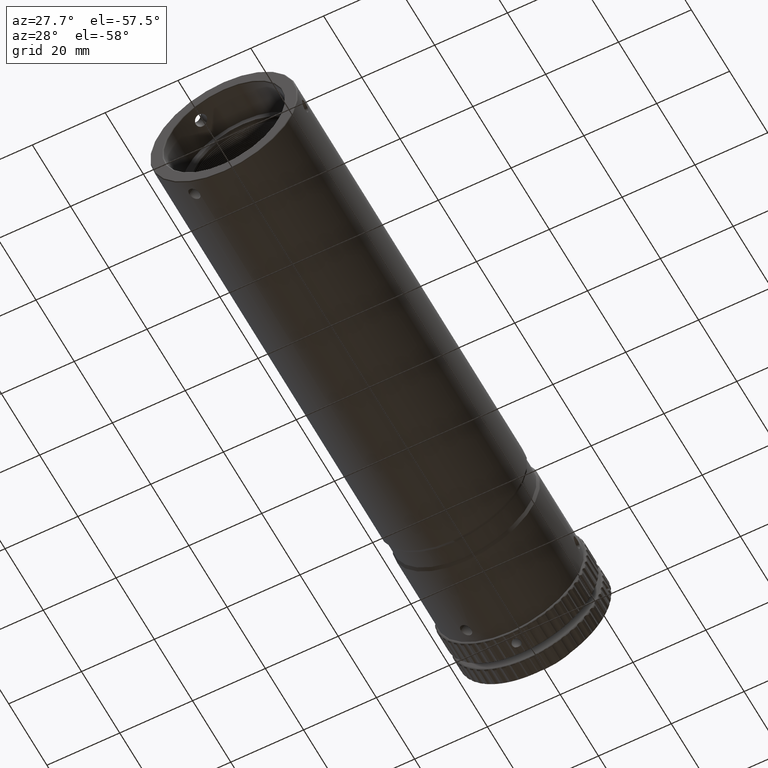
[diagram: clean part render]
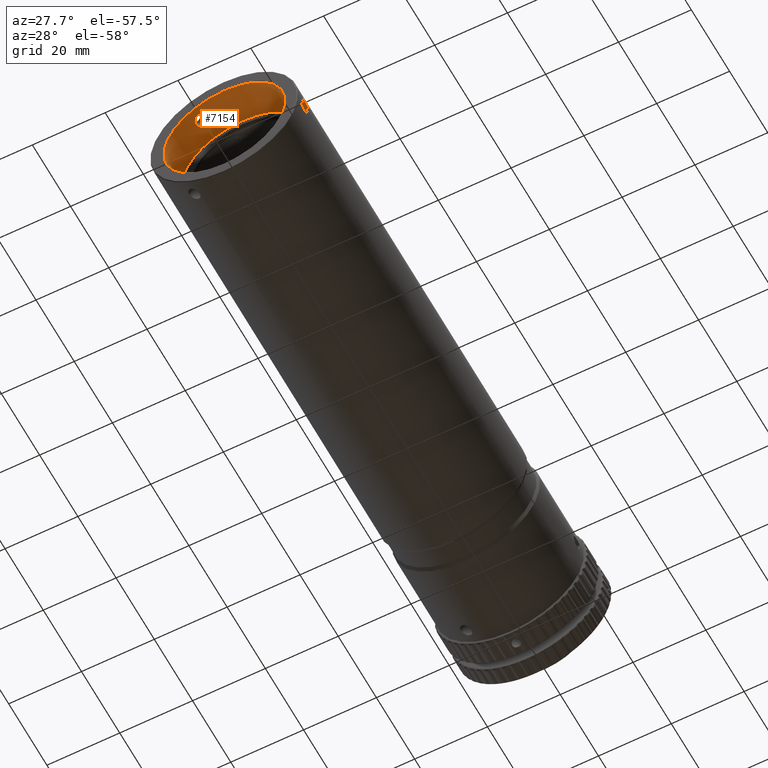
[diagram: same view with one face highlighted and labeled with its STEP entity id]
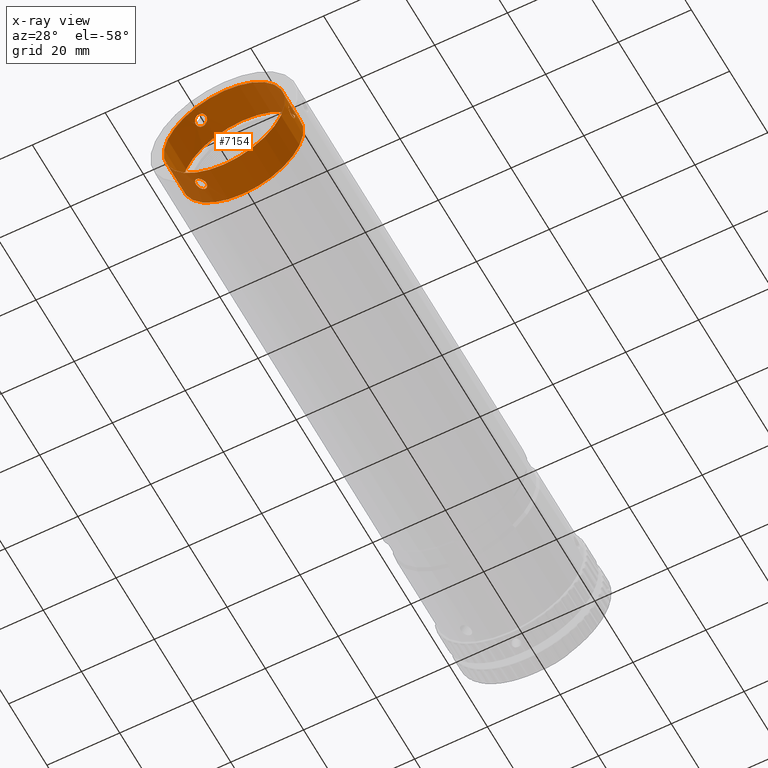
[diagram: x-ray of the same camera — body ghosted, the highlighted face saturated]
A machine part, auxiliary view. The second image highlights one B-rep face of the part: STEP entity #7154.
The next image is the same camera in x-ray: the body ghosted, the highlighted face saturated — about 0% of this face is hidden behind the body in this view.
In plain terms, the highlighted cylindrical surface (bore or boss wall) has radius 16.65 mm, axis along (-0, -1, -0).
Its self-contained STEP definition (entity closure, byte-faithful):
#75 = CARTESIAN_POINT ( 'NONE',  ( -66.75459263948715700, -25.88126383602334400, 1.649960323520047300 ) ) ;
#125 = CARTESIAN_POINT ( 'NONE',  ( -66.67262789791868700, -24.12284469964755100, -0.1074326723769098200 ) ) ;
#241 = DIRECTION ( 'NONE',  ( 0.0000000000000000000, 0.0000000000000000000, -1.000000000000000000 ) ) ;
#395 = CARTESIAN_POINT ( 'NONE',  ( -92.85704117589803300, -26.59958695141354600, -13.64995483160414500 ) ) ;
#446 = CARTESIAN_POINT ( 'NONE',  ( -90.76147769274268700, -27.08533141833559900, -14.89611279452171600 ) ) ;
#485 = CARTESIAN_POINT ( 'NONE',  ( -66.67263231235790500, -27.42300638599903800, 0.1067774955328074100 ) ) ;
#488 = CARTESIAN_POINT ( 'NONE',  ( -90.47879859613387100, -24.75960419416959700, -15.03446290520388700 ) ) ;
#521 = CYLINDRICAL_SURFACE ( 'NONE', #1212, 16.64999999999972900 ) ;
#528 = CARTESIAN_POINT ( 'NONE',  ( -92.27247448545041700, -24.28955594591042200, -14.04040376283230400 ) ) ;
#626 = CARTESIAN_POINT ( 'NONE',  ( -90.17771696326720100, -25.88202645505071300, 15.17334485228147800 ) ) ;
#663 = CARTESIAN_POINT ( 'NONE',  ( -90.54831841667092400, -26.86374050248877100, 15.00059528000334200 ) ) ;
#700 = VERTEX_POINT ( 'NONE', #8418 ) ;
#710 = CARTESIAN_POINT ( 'NONE',  ( -92.70119582803558000, -26.86318963047831700, 13.75758417406720800 ) ) ;
#771 = CARTESIAN_POINT ( 'NONE',  ( -92.50467813197917600, -24.46149750697041700, 13.88958943048005200 ) ) ;
#816 = CARTESIAN_POINT ( 'NONE',  ( -90.76244719381560300, -24.45971112726386900, 14.89563052912040700 ) ) ;
#829 = AXIS2_PLACEMENT_3D ( 'NONE', #7284, #12806, #873 ) ;
#873 = DIRECTION ( 'NONE',  ( 0.0000000000000000000, 0.0000000000000000000, -1.000000000000000000 ) ) ;
#1031 = VERTEX_POINT ( 'NONE', #11227 ) ;
#1145 = CARTESIAN_POINT ( 'NONE',  ( -66.75015348581297300, -25.34092814471971500, 1.606878748266351100 ) ) ;
#1185 = CARTESIAN_POINT ( 'NONE',  ( -66.67775052434888000, -24.17522605979797100, -0.4258526878777749200 ) ) ;
#1212 = AXIS2_PLACEMENT_3D ( 'NONE', #12888, #11835, #241 ) ;
#1349 = CIRCLE ( 'NONE', #829, 16.64999999999963600 ) ;
#1358 = CARTESIAN_POINT ( 'NONE',  ( -93.03560079575565600, -25.88202645505072400, -13.52334485228160000 ) ) ;
#1361 = VERTEX_POINT ( 'NONE', #3121 ) ;
#1465 = CARTESIAN_POINT ( 'NONE',  ( -92.70069455096802400, -26.86374050248878100, -13.75792033946958500 ) ) ;
#1496 = CARTESIAN_POINT ( 'NONE',  ( -66.75352008772910000, -25.98926885422584800, -1.639290063819079500 ) ) ;
#1498 = CARTESIAN_POINT ( 'NONE',  ( -90.54777665035881300, -26.86318963047833100, -15.00086131597701400 ) ) ;
#1538 = CARTESIAN_POINT ( 'NONE',  ( -66.67779900076247700, -27.37016678568784300, 0.4278266125561721600 ) ) ;
#1540 = CARTESIAN_POINT ( 'NONE',  ( -90.76035540387367500, -24.46149750697043500, -14.89667462710533600 ) ) ;
#1587 = CARTESIAN_POINT ( 'NONE',  ( -92.50272802162921000, -24.45971112726387300, -13.89087892471669200 ) ) ;
#1669 = EDGE_CURVE ( 'NONE', #3020, #3020, #1349, .T. ) ;
#1721 = CARTESIAN_POINT ( 'NONE',  ( -90.91863394221572000, -27.21480437953679800, 14.81765199850995700 ) ) ;
#1770 = CARTESIAN_POINT ( 'NONE',  ( -92.85620087089742500, -26.60130690940707200, 13.65054126060565700 ) ) ;
#1810 = CARTESIAN_POINT ( 'NONE',  ( -92.27467414795688700, -24.29084885715613100, 14.03900028695845000 ) ) ;
#1856 = CARTESIAN_POINT ( 'NONE',  ( -90.48037838563874400, -24.75732889106927800, 15.03371386940919100 ) ) ;
#1883 = ORIENTED_EDGE ( 'NONE', *, *, #1669, .F. ) ;
#2174 = CARTESIAN_POINT ( 'NONE',  ( -66.72433106870350600, -24.75960419416957200, 1.319814683785604000 ) ) ;
#2229 = CARTESIAN_POINT ( 'NONE',  ( -66.68837359420317100, -24.28955594591042900, -0.7305837737040182800 ) ) ;
#2497 = CARTESIAN_POINT ( 'NONE',  ( -92.35710325897071000, -27.21480437953678000, -13.98715135126045100 ) ) ;
#2543 = CARTESIAN_POINT ( 'NONE',  ( -66.74635454017793300, -26.30505791833880000, -1.565583909435753500 ) ) ;
#2546 = CARTESIAN_POINT ( 'NONE',  ( -90.37757224657508500, -26.60130690940708900, -15.08157816407927100 ) ) ;
#2589 = AXIS2_PLACEMENT_3D ( 'NONE', #3246, #7250, #4130 ) ;
#2593 = CARTESIAN_POINT ( 'NONE',  ( -66.68837277086970500, -27.25634840566656800, 0.7305582812705180300 ) ) ;
#2597 = CARTESIAN_POINT ( 'NONE',  ( -91.00475099319628200, -24.29084885715612800, -14.77219076220960800 ) ) ;
#2638 = CARTESIAN_POINT ( 'NONE',  ( -92.76334610624711300, -24.75732889106927500, -13.71564184136470000 ) ) ;
#2777 = CARTESIAN_POINT ( 'NONE',  ( -91.46034667254065200, -27.42282993664998300, 14.52744224979590400 ) ) ;
#2818 = CARTESIAN_POINT ( 'NONE',  ( -92.96662177228887500, -26.30503804086366800, 13.57268617147319600 ) ) ;
#2879 = CARTESIAN_POINT ( 'NONE',  ( -92.01631737853284700, -24.17598937840662600, 14.20047774373003900 ) ) ;
#2935 = CARTESIAN_POINT ( 'NONE',  ( -90.21799836891007400, -25.33805193462267600, 15.15530826299030000 ) ) ;
#3020 = VERTEX_POINT ( 'NONE', #10422 ) ;
#3048 = ORIENTED_EDGE ( 'NONE', *, *, #11201, .F. ) ;
#3121 = CARTESIAN_POINT ( 'NONE',  ( -83.32263811662116400, -29.41294781569395800, -16.64999999999981700 ) ) ;
#3139 = EDGE_CURVE ( 'NONE', #1361, #1361, #12181, .T. ) ;
#3246 = CARTESIAN_POINT ( 'NONE',  ( -83.32263811662116400, -29.41294781569395800, 0.0000000000000000000 ) ) ;
#3276 = CARTESIAN_POINT ( 'NONE',  ( -66.70288081401061200, -24.46149750697042800, 1.007085196625160800 ) ) ;
#3305 = B_SPLINE_CURVE_WITH_KNOTS ( 'NONE', 3,
 ( #10147, #626, #11210, #4895, #12242, #5957, #13315, #6998, #663, #8051, #1721, #9109, #2777, #10197, #3855, #11247, #4944, #12296, #6005, #13356, #7052, #710, #8090, #1770, #9156, #2818, #10244, #3909, #11286, #4982, #12350, #6050, #13394, #7098, #771, #8134, #1810, #9207, #2879, #10288, #3952, #11338, #5030, #12389, #6101, #13450, #7138, #816, #8189, #1856, #9251, #2935, #10327, #3992 ),
 .UNSPECIFIED., .T., .F.,
 ( 4, 2, 2, 2, 2, 2, 2, 2, 2, 2, 2, 2, 2, 2, 2, 2, 2, 2, 2, 2, 2, 2, 2, 2, 2, 2, 4 ),
 ( 0.0000000000000000000, 0.0003225757521745182200, 0.0006451515043490364400, 0.0009677272565235548300, 0.001290303008698072900, 0.001935454513047091900, 0.002580606017396111100, 0.002903181769570618900, 0.003225757521745126800, 0.003548333273919634700, 0.003870909026094142500, 0.004193484778268650800, 0.004516060530443158700, 0.004838636282617666600, 0.005161212034792173600, 0.005806363539141201500, 0.006451515043490228500, 0.006774090795664728500, 0.007096666547839228600, 0.007419242300013728600, 0.007741818052188227800, 0.008064393804362727000, 0.008386969556537227100, 0.008709545308711727100, 0.009032121060886227200, 0.009677272565235225600, 0.01032242406958422400 ),
 .UNSPECIFIED. ) ;
#3313 = CARTESIAN_POINT ( 'NONE',  ( -66.70273913441862100, -24.45971112726387300, -1.004751604403841100 ) ) ;
#3387 = FACE_OUTER_BOUND ( 'NONE', #4560, .T. ) ;
#3600 = CARTESIAN_POINT ( 'NONE',  ( -91.83491787899603800, -27.42282993664997900, -14.31118346291821600 ) ) ;
#3639 = CARTESIAN_POINT ( 'NONE',  ( -66.73422894230343200, -26.59958695141354600, -1.432057843451908500 ) ) ;
#3643 = CARTESIAN_POINT ( 'NONE',  ( -90.25493731087678400, -26.30503804086368200, -15.13827792522678100 ) ) ;
#3679 = CARTESIAN_POINT ( 'NONE',  ( -66.70280623086615900, -27.08533141833558500, 1.005832349662410900 ) ) ;
#3681 = CARTESIAN_POINT ( 'NONE',  ( -91.27377295761098700, -24.17598937840663400, -14.62918596503452300 ) ) ;
#3729 = CARTESIAN_POINT ( 'NONE',  ( -92.99983994841045400, -25.33805193462267300, -13.54921127822289700 ) ) ;
#3855 = CARTESIAN_POINT ( 'NONE',  ( -91.83430542976455500, -27.41228261748856100, 14.31031880684696000 ) ) ;
#3909 = CARTESIAN_POINT ( 'NONE',  ( -93.02672942183687600, -25.99066703385440000, 13.52972887091810300 ) ) ;
#3952 = CARTESIAN_POINT ( 'NONE',  ( -91.74339548434990400, -24.12305242980756500, 14.36402546001061100 ) ) ;
#3992 = CARTESIAN_POINT ( 'NONE',  ( -90.17771696326721600, -25.77294781569454300, 15.17334485228148300 ) ) ;
#4130 = DIRECTION ( 'NONE',  ( 0.0000000000000000000, 0.0000000000000000000, -1.000000000000000000 ) ) ;
#4242 = EDGE_CURVE ( 'NONE', #700, #700, #3305, .T. ) ;
#4327 = CARTESIAN_POINT ( 'NONE',  ( -66.68848920871025100, -24.29084885715612800, 0.7331904752510417500 ) ) ;
#4374 = CARTESIAN_POINT ( 'NONE',  ( -66.72418985797757800, -24.75732889106927100, -1.318072028044604800 ) ) ;
#4507 = VERTEX_POINT ( 'NONE', #12220 ) ;
#4551 = EDGE_LOOP ( 'NONE', ( #3048 ) ) ;
#4560 = EDGE_LOOP ( 'NONE', ( #1883 ) ) ;
#4660 = CARTESIAN_POINT ( 'NONE',  ( -91.45990408303313800, -27.41228261748856100, -14.52647952516730400 ) ) ;
#4705 = CARTESIAN_POINT ( 'NONE',  ( -66.71890138222443100, -26.86374050248877800, -1.242674940533872800 ) ) ;
#4707 = CARTESIAN_POINT ( 'NONE',  ( -90.18768137254409100, -25.99066703385441100, -15.16885402641958300 ) ) ;
#4757 = CARTESIAN_POINT ( 'NONE',  ( -66.71894187146897100, -26.86318963047833100, 1.243277141909691700 ) ) ;
#4761 = CARTESIAN_POINT ( 'NONE',  ( -91.55187038173234300, -24.12305242980756900, -14.47460252956342000 ) ) ;
#4804 = CARTESIAN_POINT ( 'NONE',  ( -93.03560079575562700, -25.77294781569453600, -13.52334485228160000 ) ) ;
#4895 = CARTESIAN_POINT ( 'NONE',  ( -90.22590940219345200, -26.20023550979534800, 15.15149463671772500 ) ) ;
#4944 = CARTESIAN_POINT ( 'NONE',  ( -92.10316812634630400, -27.33900581695165100, 14.14690042884008900 ) ) ;
#4982 = CARTESIAN_POINT ( 'NONE',  ( -93.03566529349622300, -25.55813406184020700, 13.52329852763744900 ) ) ;
#5030 = CARTESIAN_POINT ( 'NONE',  ( -91.46103681810829800, -24.13346619771140700, 14.52584249008589800 ) ) ;
#5408 = CARTESIAN_POINT ( 'NONE',  ( -66.67782401371955800, -24.17598937840663000, 0.4287082213043703100 ) ) ;
#5451 = CARTESIAN_POINT ( 'NONE',  ( -66.75007603254286400, -25.33805193462266200, -1.606096984767533500 ) ) ;
#5682 = CARTESIAN_POINT ( 'NONE',  ( -92.99258173453614500, -26.20023550979534500, -13.55415562088017900 ) ) ;
#5732 = CARTESIAN_POINT ( 'NONE',  ( -66.75459659084056300, -25.88202645505072800, -1.649999999999998800 ) ) ;
#5736 = CARTESIAN_POINT ( 'NONE',  ( -91.18394826794303800, -27.33900581695166900, -14.67761226153368200 ) ) ;
#5782 = CARTESIAN_POINT ( 'NONE',  ( -66.69217714867701800, -27.21480437953678000, -0.8305006472496276900 ) ) ;
#5783 = CARTESIAN_POINT ( 'NONE',  ( -90.17764459607826700, -25.55813406184020700, -15.17337754664119800 ) ) ;
#5824 = CARTESIAN_POINT ( 'NONE',  ( -66.73414123239086800, -26.60130690940707500, 1.431036903473504900 ) ) ;
#5826 = CARTESIAN_POINT ( 'NONE',  ( -91.83318737366335000, -24.13346619771141700, -14.31098126665712300 ) ) ;
#5957 = CARTESIAN_POINT ( 'NONE',  ( -90.33049516301693400, -26.50484233501986600, 15.10344893729332000 ) ) ;
#6005 = CARTESIAN_POINT ( 'NONE',  ( -92.35376971704840800, -27.20471449524500700, 13.98817974727772700 ) ) ;
#6050 = CARTESIAN_POINT ( 'NONE',  ( -92.86574041271929000, -24.94368144989264700, 13.64399152433809300 ) ) ;
#6101 = CARTESIAN_POINT ( 'NONE',  ( -91.18401279809720000, -24.20686144612634600, 14.67757803486741800 ) ) ;
#6212 = FACE_OUTER_BOUND ( 'NONE', #7801, .T. ) ;
#6427 = CARTESIAN_POINT ( 'NONE',  ( -66.75350355548248200, -25.99066703385439300, 1.639125155501369100 ) ) ;
#6461 = CARTESIAN_POINT ( 'NONE',  ( -66.67264848378113100, -24.12305242980757600, 0.1105770695526930400 ) ) ;
#6504 = CARTESIAN_POINT ( 'NONE',  ( -66.75459659084054900, -25.77294781569454300, -1.649999999999999000 ) ) ;
#6746 = CARTESIAN_POINT ( 'NONE',  ( -92.89868005788028400, -26.50484233501987300, -13.62070669691524900 ) ) ;
#6786 = CARTESIAN_POINT ( 'NONE',  ( -90.92119133025299500, -27.20471449524501800, -14.81527926452927500 ) ) ;
#6821 = CARTESIAN_POINT ( 'NONE',  ( -66.67264979832690100, -27.42282993664996800, -0.2162587868778025300 ) ) ;
#6823 = CARTESIAN_POINT ( 'NONE',  ( -90.36713023766837700, -24.94368144989265800, -15.08656478150366500 ) ) ;
#6871 = CARTESIAN_POINT ( 'NONE',  ( -66.74635526669774800, -26.30503804086366800, 1.565591753753472000 ) ) ;
#6874 = CARTESIAN_POINT ( 'NONE',  ( -92.10310622010676700, -24.20686144612635400, -14.14693920025976000 ) ) ;
#6998 = CARTESIAN_POINT ( 'NONE',  ( -90.48528814576093300, -26.77889490861338800, 15.03072031413147900 ) ) ;
#7052 = CARTESIAN_POINT ( 'NONE',  ( -92.57313983367473000, -27.01716999436952400, 13.84401260602088100 ) ) ;
#7098 = CARTESIAN_POINT ( 'NONE',  ( -92.57538985375400400, -24.53121662190081400, 13.84250292414995300 ) ) ;
#7138 = CARTESIAN_POINT ( 'NONE',  ( -90.92272458036991600, -24.34016548178538700, 14.81449471661830200 ) ) ;
#7154 = ADVANCED_FACE ( 'NONE', ( #8996, #11802, #9329, #6212, #3387 ), #521, .F. ) ;
#7250 = DIRECTION ( 'NONE',  ( -0.0000000000000000000, -1.000000000000000000, -0.0000000000000000000 ) ) ;
#7284 = CARTESIAN_POINT ( 'NONE',  ( -83.32263811662116400, -19.71294781569414000, 0.0000000000000000000 ) ) ;
#7453 = CARTESIAN_POINT ( 'NONE',  ( -66.75460446028890300, -25.55813406184020000, 1.650079019003639200 ) ) ;
#7495 = CARTESIAN_POINT ( 'NONE',  ( -66.67369015809185800, -24.13346619771141000, -0.2148612234288899700 ) ) ;
#7761 = B_SPLINE_CURVE_WITH_KNOTS ( 'NONE', 3,
 ( #10935, #1358, #11980, #5682, #13050, #6746, #395, #7768, #1465, #8847, #2497, #9929, #3600, #10974, #4660, #12025, #5736, #13085, #6786, #446, #7812, #1498, #8894, #2546, #9969, #3643, #11031, #4707, #12067, #5783, #13140, #6823, #488, #7867, #1540, #8928, #2597, #10020, #3681, #11078, #4761, #12112, #5826, #13187, #6874, #528, #7915, #1587, #8977, #2638, #10070, #3729, #11115, #4804 ),
 .UNSPECIFIED., .T., .F.,
 ( 4, 2, 2, 2, 2, 2, 2, 2, 2, 2, 2, 2, 2, 2, 2, 2, 2, 2, 2, 2, 2, 2, 2, 2, 2, 2, 4 ),
 ( 0.0000000000000000000, 0.0003225757521745267300, 0.0006451515043490534600, 0.0009677272565235800900, 0.001290303008698106900, 0.001935454513047133900, 0.002580606017396160900, 0.002903181769570674500, 0.003225757521745188000, 0.003548333273919701500, 0.003870909026094215000, 0.004193484778268728900, 0.004516060530443242000, 0.004838636282617755900, 0.005161212034792269000, 0.005806363539141285600, 0.006451515043490303100, 0.006774090795664797000, 0.007096666547839291900, 0.007419242300013786800, 0.007741818052188280700, 0.008064393804362775600, 0.008386969556537270500, 0.008709545308711765300, 0.009032121060886260200, 0.009677272565235227300, 0.01032242406958419400 ),
 .UNSPECIFIED. ) ;
#7768 = CARTESIAN_POINT ( 'NONE',  ( -92.75829873126788500, -26.77889490861338500, -13.71839704071818700 ) ) ;
#7801 = EDGE_LOOP ( 'NONE', ( #11158 ) ) ;
#7809 = CARTESIAN_POINT ( 'NONE',  ( -66.75459659084054900, -25.77294781569454300, -1.649999999999999000 ) ) ;
#7812 = CARTESIAN_POINT ( 'NONE',  ( -90.68665386522043500, -27.01716999436953200, -14.93317578773044800 ) ) ;
#7848 = EDGE_LOOP ( 'NONE', ( #11950 ) ) ;
#7864 = CARTESIAN_POINT ( 'NONE',  ( -66.67370483706579900, -27.41228261748855000, 0.2161607183202302300 ) ) ;
#7867 = CARTESIAN_POINT ( 'NONE',  ( -90.68422143232886900, -24.53121662190082500, -14.93436952134268700 ) ) ;
#7915 = CARTESIAN_POINT ( 'NONE',  ( -92.35232365356851900, -24.34016548178538400, -13.98911530687386000 ) ) ;
#8051 = CARTESIAN_POINT ( 'NONE',  ( -90.75395739488405400, -27.09189214866835000, 14.90037757899072400 ) ) ;
#8090 = CARTESIAN_POINT ( 'NONE',  ( -92.75763412072893700, -26.77990476283522300, 13.71885366565632800 ) ) ;
#8134 = CARTESIAN_POINT ( 'NONE',  ( -92.35442393405003300, -24.34160475068015500, 13.98775887478149300 ) ) ;
#8189 = CARTESIAN_POINT ( 'NONE',  ( -90.68619040457394900, -24.52929224236324800, 14.93339955666742100 ) ) ;
#8418 = CARTESIAN_POINT ( 'NONE',  ( -90.17771696326721600, -25.77294781569454000, 15.17334485228147800 ) ) ;
#8527 = CARTESIAN_POINT ( 'NONE',  ( -66.73504369947572500, -24.94368144989264700, 1.442573257165456800 ) ) ;
#8574 = CARTESIAN_POINT ( 'NONE',  ( -66.68079533165952500, -24.20686144612633600, -0.5306388346077772800 ) ) ;
#8847 = CARTESIAN_POINT ( 'NONE',  ( -92.51108398687569000, -27.09189214866836800, -13.88590006810413700 ) ) ;
#8892 = CARTESIAN_POINT ( 'NONE',  ( -66.74942321313380900, -26.20023550979535200, -1.597339015837665900 ) ) ;
#8894 = CARTESIAN_POINT ( 'NONE',  ( -90.48601589982689600, -26.77990476283523300, -15.03037305699018600 ) ) ;
#8926 = CARTESIAN_POINT ( 'NONE',  ( -66.68079795557413500, -27.33900581695165900, 0.5307118326934754400 ) ) ;
#8928 = CARTESIAN_POINT ( 'NONE',  ( -90.92049973547862900, -24.34160475068016500, -14.81563539682422200 ) ) ;
#8977 = CARTESIAN_POINT ( 'NONE',  ( -92.57356535358199800, -24.52929224236324000, -13.84372312179585600 ) ) ;
#8981 = EDGE_LOOP ( 'NONE', ( #12762 ) ) ;
#8996 = FACE_BOUND ( 'NONE', #4551, .T. ) ;
#9109 = CARTESIAN_POINT ( 'NONE',  ( -91.27000482974534600, -27.37942760513153900, 14.63220166818795300 ) ) ;
#9156 = CARTESIAN_POINT ( 'NONE',  ( -92.89867715103783000, -26.50485185117798200, 13.62070875804242000 ) ) ;
#9207 = CARTESIAN_POINT ( 'NONE',  ( -92.10558338847688700, -24.20785797981766800, 14.14540033067777200 ) ) ;
#9251 = CARTESIAN_POINT ( 'NONE',  ( -90.36845000045082100, -24.94117485756392600, 15.08595029995768200 ) ) ;
#9329 = FACE_BOUND ( 'NONE', #7848, .T. ) ;
#9566 = B_SPLINE_CURVE_WITH_KNOTS ( 'NONE', 3,
 ( #7809, #5732, #1496, #8892, #2543, #9966, #3639, #11029, #4705, #12064, #5782, #13139, #6821, #485, #7864, #1538, #8926, #2593, #10017, #3679, #11075, #4757, #12109, #5824, #13185, #6871, #12717, #6427, #75, #7453, #1145, #8527, #2174, #9601, #3276, #10653, #4327, #11713, #5408, #12758, #6461, #125, #7495, #1185, #8574, #2229, #9646, #3313, #10713, #4374, #11755, #5451, #12811, #6504 ),
 .UNSPECIFIED., .T., .F.,
 ( 4, 2, 2, 2, 2, 2, 2, 2, 2, 2, 2, 2, 2, 2, 2, 2, 2, 2, 2, 2, 2, 2, 2, 2, 2, 2, 4 ),
 ( 0.0000000000000000000, 0.0003225757521745020700, 0.0006451515043490041300, 0.0009677272565235062500, 0.001290303008698008300, 0.001935454513047017100, 0.002580606017396026100, 0.002903181769570530500, 0.003225757521745034900, 0.003548333273919538800, 0.003870909026094043200, 0.004193484778268547600, 0.004516060530443052000, 0.004838636282617556400, 0.005161212034792060800, 0.005806363539141080000, 0.006451515043490099200, 0.006774090795664608800, 0.007096666547839119300, 0.007419242300013629800, 0.007741818052188139400, 0.008064393804362649000, 0.008386969556537159400, 0.008709545308711669900, 0.009032121060886180400, 0.009677272565235196100, 0.01032242406958421400 ),
 .UNSPECIFIED. ) ;
#9601 = CARTESIAN_POINT ( 'NONE',  ( -66.70830306378047700, -24.53121662190081800, 1.091866597192611600 ) ) ;
#9646 = CARTESIAN_POINT ( 'NONE',  ( -66.69286611592500000, -24.34016548178539100, -0.8253794097445622500 ) ) ;
#9901 = EDGE_CURVE ( 'NONE', #4507, #4507, #9566, .T. ) ;
#9929 = CARTESIAN_POINT ( 'NONE',  ( -92.02081311800684200, -27.37942760513153600, -14.19872230085034600 ) ) ;
#9966 = CARTESIAN_POINT ( 'NONE',  ( -66.73873912896618800, -26.50484233501987700, -1.482742240378195400 ) ) ;
#9969 = CARTESIAN_POINT ( 'NONE',  ( -90.33049840142669500, -26.50485185117798500, -15.10344745045750300 ) ) ;
#10017 = CARTESIAN_POINT ( 'NONE',  ( -66.69295330256206000, -27.20471449524500300, 0.8270995172514353800 ) ) ;
#10020 = CARTESIAN_POINT ( 'NONE',  ( -91.18144151376097300, -24.20785797981766400, -14.67895389081442500 ) ) ;
#10070 = CARTESIAN_POINT ( 'NONE',  ( -92.86454837469906900, -24.94117485756392600, -13.64482723166165100 ) ) ;
#10147 = CARTESIAN_POINT ( 'NONE',  ( -90.17771696326721600, -25.77294781569454300, 15.17334485228148300 ) ) ;
#10197 = CARTESIAN_POINT ( 'NONE',  ( -91.74011304243674700, -27.42300638599902700, 14.36593925188390700 ) ) ;
#10244 = CARTESIAN_POINT ( 'NONE',  ( -92.99216949257494500, -26.20219306335977900, 13.55444998330669100 ) ) ;
#10288 = CARTESIAN_POINT ( 'NONE',  ( -91.83569290205164700, -24.13385036347088400, 14.30949074843074500 ) ) ;
#10327 = CARTESIAN_POINT ( 'NONE',  ( -90.17771696326723000, -25.55479053698220700, 15.17334485228149000 ) ) ;
#10422 = CARTESIAN_POINT ( 'NONE',  ( -83.32263811662116400, -19.71294781569414000, -16.64999999999963600 ) ) ;
#10653 = CARTESIAN_POINT ( 'NONE',  ( -66.69299068033467400, -24.34160475068014800, 0.8278765220426055300 ) ) ;
#10713 = CARTESIAN_POINT ( 'NONE',  ( -66.70815859170755900, -24.52929224236324800, -1.089676434871677000 ) ) ;
#10935 = CARTESIAN_POINT ( 'NONE',  ( -93.03560079575562700, -25.77294781569453600, -13.52334485228160000 ) ) ;
#10974 = CARTESIAN_POINT ( 'NONE',  ( -91.55516899506879700, -27.42300638599903800, -14.47271674741683100 ) ) ;
#11029 = CARTESIAN_POINT ( 'NONE',  ( -66.72432747283460200, -26.77889490861338500, -1.312323273413412700 ) ) ;
#11031 = CARTESIAN_POINT ( 'NONE',  ( -90.22637044851335000, -26.20219306335976800, -15.15128480592007100 ) ) ;
#11075 = CARTESIAN_POINT ( 'NONE',  ( -66.70812065096826900, -27.01716999436951700, 1.089163181709444300 ) ) ;
#11078 = CARTESIAN_POINT ( 'NONE',  ( -91.45849322726529400, -24.13385036347087000, -14.52726708220686500 ) ) ;
#11115 = CARTESIAN_POINT ( 'NONE',  ( -93.03560079575557000, -25.55479053698218900, -13.52334485228159800 ) ) ;
#11158 = ORIENTED_EDGE ( 'NONE', *, *, #3139, .T. ) ;
#11201 = EDGE_CURVE ( 'NONE', #1031, #1031, #7761, .T. ) ;
#11210 = CARTESIAN_POINT ( 'NONE',  ( -90.18753029162854800, -25.98926885422585200, 15.16892216323280400 ) ) ;
#11227 = CARTESIAN_POINT ( 'NONE',  ( -93.03560079575567000, -25.77294781569454000, -13.52334485228160000 ) ) ;
#11247 = CARTESIAN_POINT ( 'NONE',  ( -92.01556638943928600, -27.37016678568785000, 14.20094020996041600 ) ) ;
#11286 = CARTESIAN_POINT ( 'NONE',  ( -93.03556841059301500, -25.88126383602334000, 13.52336811249387700 ) ) ;
#11338 = CARTESIAN_POINT ( 'NONE',  ( -91.55460380249761000, -24.12284469964755800, 14.47304815885525500 ) ) ;
#11713 = CARTESIAN_POINT ( 'NONE',  ( -66.68088944762550300, -24.20785797981765300, 0.5335535601365295500 ) ) ;
#11755 = CARTESIAN_POINT ( 'NONE',  ( -66.73491597471353000, -24.94117485756393600, -1.441123068296145300 ) ) ;
#11802 = FACE_BOUND ( 'NONE', #8981, .T. ) ;
#11835 = DIRECTION ( 'NONE',  ( -0.0000000000000000000, -1.000000000000000000, -0.0000000000000000000 ) ) ;
#11950 = ORIENTED_EDGE ( 'NONE', *, *, #9901, .F. ) ;
#11980 = CARTESIAN_POINT ( 'NONE',  ( -93.02686397050580100, -25.98926885422584100, -13.52963209941384900 ) ) ;
#12025 = CARTESIAN_POINT ( 'NONE',  ( -91.27454895966171500, -27.37016678568785000, -14.62876682251669500 ) ) ;
#12064 = CARTESIAN_POINT ( 'NONE',  ( -66.70287296810366200, -27.09189214866836100, -1.014477510886715900 ) ) ;
#12067 = CARTESIAN_POINT ( 'NONE',  ( -90.17775329978327600, -25.88126383602335400, -15.17332843601403300 ) ) ;
#12109 = CARTESIAN_POINT ( 'NONE',  ( -66.72426432930761600, -26.77990476283521600, 1.311519391333747500 ) ) ;
#12112 = CARTESIAN_POINT ( 'NONE',  ( -91.74068264944710900, -24.12284469964755800, -14.36561548647847200 ) ) ;
#12181 = CIRCLE ( 'NONE', #2589, 16.64999999999981700 ) ;
#12220 = CARTESIAN_POINT ( 'NONE',  ( -66.75459659084054900, -25.77294781569454000, -1.649999999999998800 ) ) ;
#12242 = CARTESIAN_POINT ( 'NONE',  ( -90.25494446751533000, -26.30505791833879300, 15.13827463225246600 ) ) ;
#12296 = CARTESIAN_POINT ( 'NONE',  ( -92.27245282002233800, -27.25634840566656400, 14.04041722207657200 ) ) ;
#12350 = CARTESIAN_POINT ( 'NONE',  ( -93.00047824882530300, -25.34092814471971900, 13.54875331997383200 ) ) ;
#12389 = CARTESIAN_POINT ( 'NONE',  ( -91.27628266678537700, -24.17522605979797100, 14.62782184198303700 ) ) ;
#12717 = CARTESIAN_POINT ( 'NONE',  ( -66.74937440877511100, -26.20219306335977500, 1.596834822613263800 ) ) ;
#12758 = CARTESIAN_POINT ( 'NONE',  ( -66.67372822054649400, -24.13385036347088100, 0.2177763337760011400 ) ) ;
#12762 = ORIENTED_EDGE ( 'NONE', *, *, #4242, .F. ) ;
#12806 = DIRECTION ( 'NONE',  ( -0.0000000000000000000, -1.000000000000000000, -0.0000000000000000000 ) ) ;
#12811 = CARTESIAN_POINT ( 'NONE',  ( -66.75459659084054900, -25.55479053698217100, -1.649999999999999200 ) ) ;
#12888 = CARTESIAN_POINT ( 'NONE',  ( -83.32263811662116400, -36.46557285159197900, 0.0000000000000000000 ) ) ;
#13050 = CARTESIAN_POINT ( 'NONE',  ( -92.96661534217018600, -26.30505791833879700, -13.57269072281683200 ) ) ;
#13085 = CARTESIAN_POINT ( 'NONE',  ( -91.00708875897139200, -27.25634840566657900, -14.77097550334720900 ) ) ;
#13139 = CARTESIAN_POINT ( 'NONE',  ( -66.67709640211126000, -27.37942760513153600, -0.4334793673377163000 ) ) ;
#13140 = CARTESIAN_POINT ( 'NONE',  ( -90.21728261522511600, -25.34092814471973300, -15.15563206824029600 ) ) ;
#13185 = CARTESIAN_POINT ( 'NONE',  ( -66.73873879739889500, -26.50485185117797100, 1.482738692414972800 ) ) ;
#13187 = CARTESIAN_POINT ( 'NONE',  ( -92.01388115872920500, -24.17522605979796800, -14.20196915410537900 ) ) ;
#13315 = CARTESIAN_POINT ( 'NONE',  ( -90.37664423166195600, -26.59958695141351000, 15.08201267505592600 ) ) ;
#13356 = CARTESIAN_POINT ( 'NONE',  ( -92.50363042625460300, -27.08533141833559600, 13.89028044485920100 ) ) ;
#13394 = CARTESIAN_POINT ( 'NONE',  ( -92.76478468502620000, -24.75960419416960400, 13.71464822141817300 ) ) ;
#13450 = CARTESIAN_POINT ( 'NONE',  ( -91.00706627020986200, -24.28955594591043300, 14.77098753653620200 ) ) ;